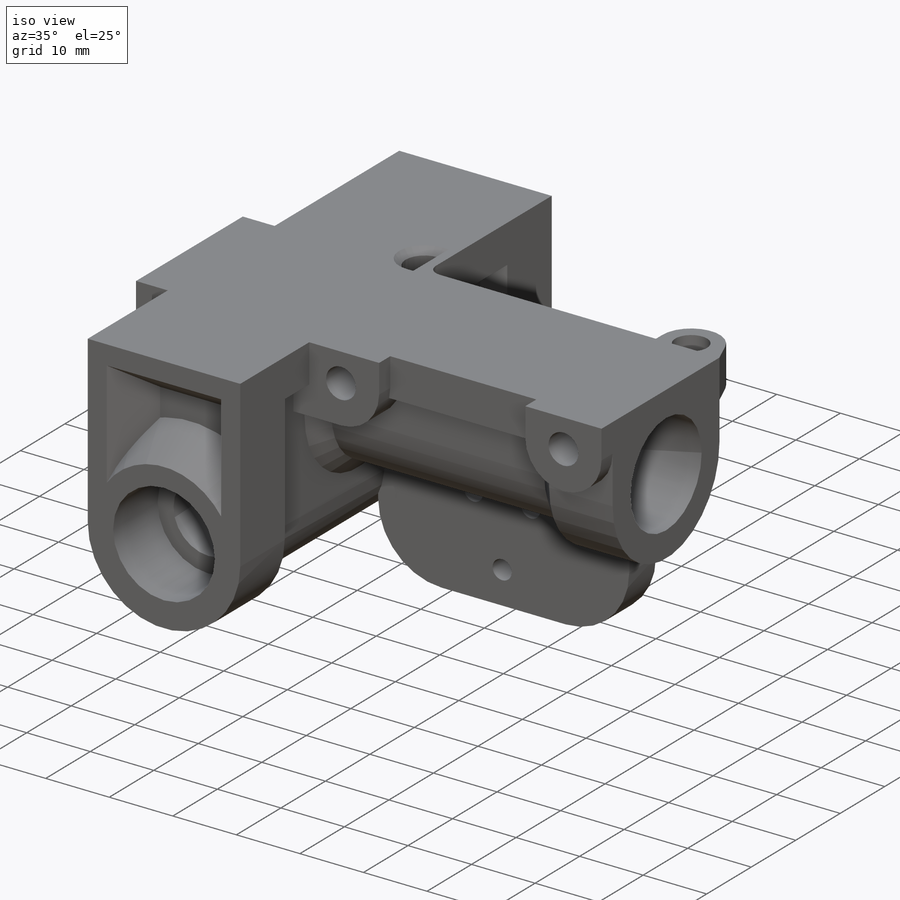
[diagram: iso view]
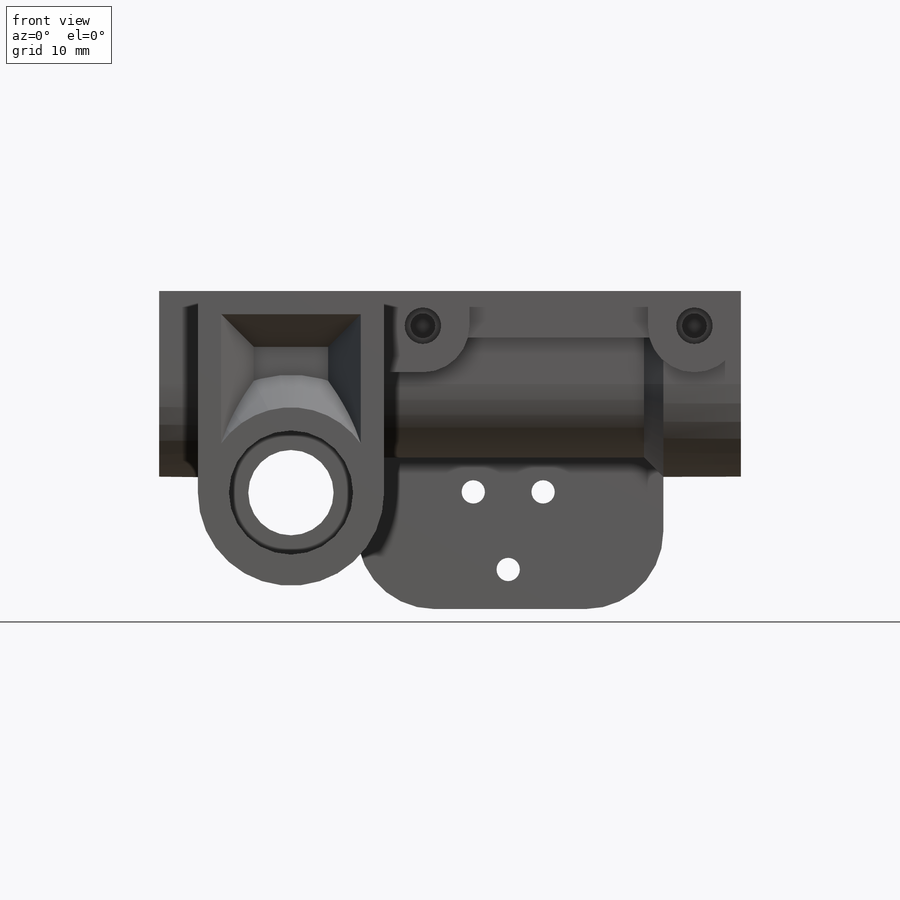
[diagram: front view]
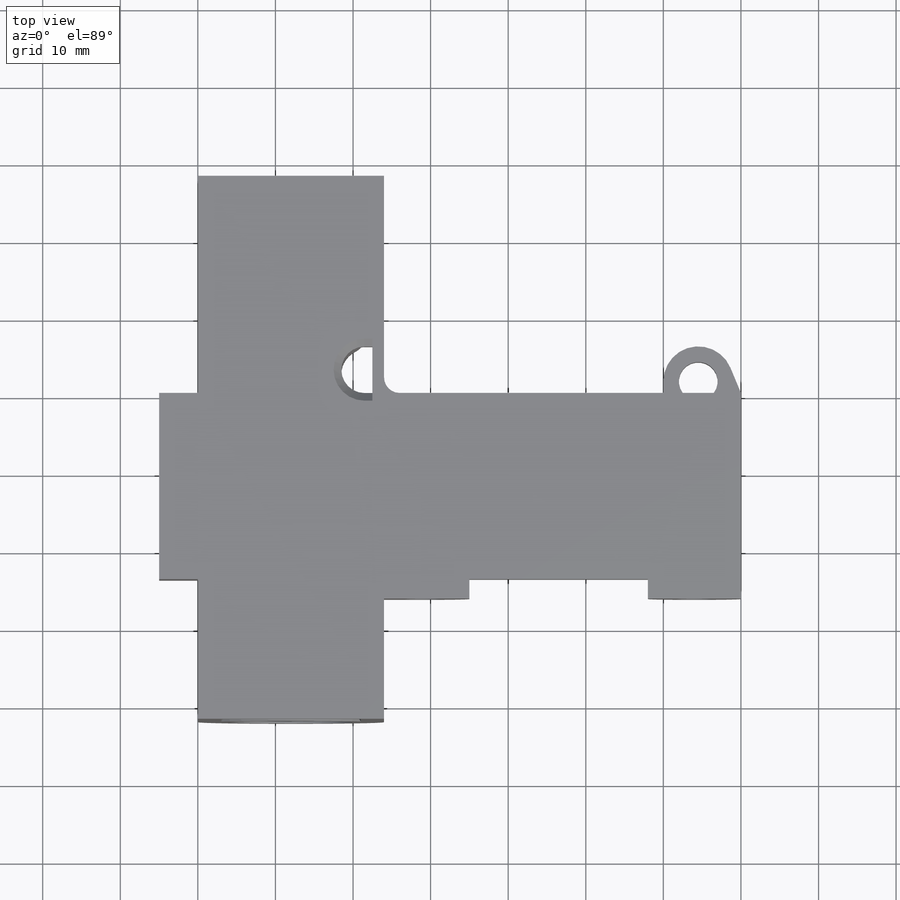
[diagram: top view]
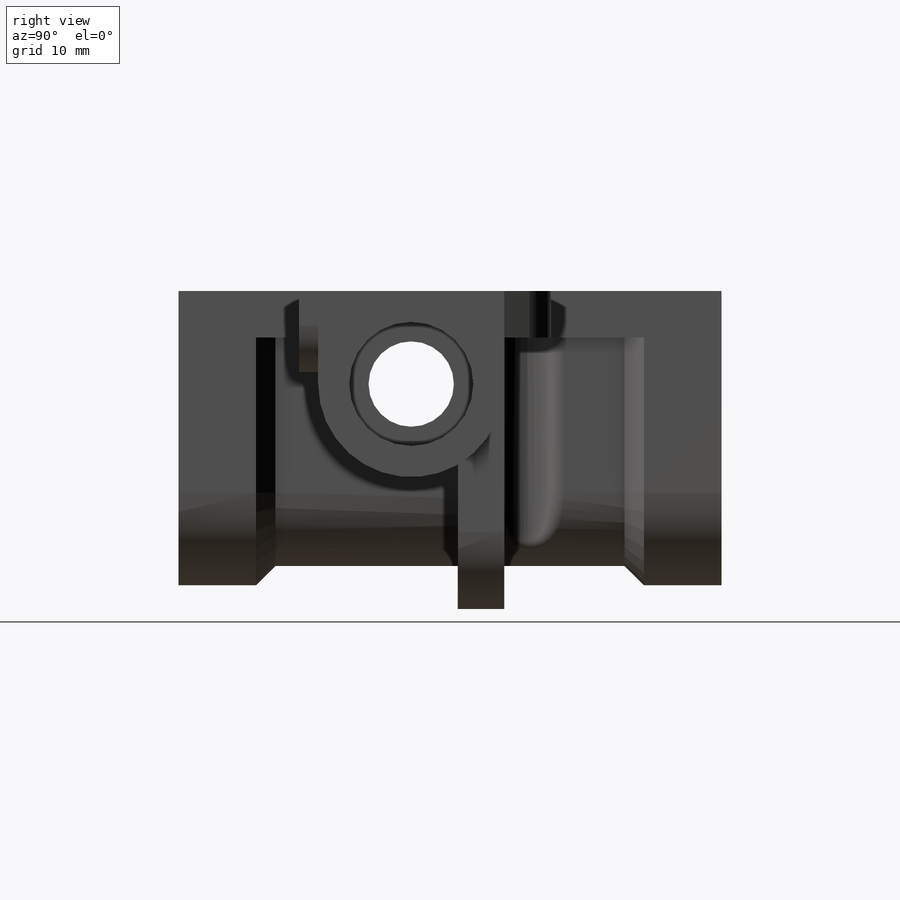
[diagram: right view]
SOLIDWORKS PART (.sldprt)
format: sldprt  version: not decoded by parser v0  size: 737,280 bytes
history: native  units: mm
features: sketch x21, extrude x11, cut_extrude x8, plane x5, chamfer x2, fillet x2, material x1 (+13 scaffold rows collapsed)
feature tree (63):
  scaffold x13  (default folders/planes/origin — collapsed)
  material  "Material <not specified>"
  sketch  "Sketch1"  dims[c1.D1=11.0mm c1.D2=16.0mm c1.D3=24.0mm c1.D5=24.0mm c2.D2=~7.407902mm c2.D4=40.0mm c2.D5=19.0mm]
  sketch  "Sketch2"  dims[c1.D1=11.0mm c1.D2=~17.401507mm c2.D1=11.0mm c2.D2=16.0mm c2.D3=24.0mm c2.D4=14.0mm c2.D5=12.0mm]
  plane  "Plane1"  Offset=28mm
  plane  "Plane2"  Offset=70mm
  plane  "Plane3"  Offset=45mm
  plane  "Plane4"  Offset=75mm
  sketch  "Sketch4"
  extrude  "Boss-Extrude2"  Depth=10mm
  extrude  "Boss-Extrude3"  [1 undecoded]
  sketch  "Sketch4<2>"  dims[D1=10.0mm]
  sketch  "Sketch5"  dims[D1=19.0mm]
  extrude  "Boss-Extrude4"  [1 undecoded]
  sketch  "Sketch6"
  extrude  "Boss-Extrude5"  Depth=10mm
  extrude  "Boss-Extrude6"  [1 undecoded]
  sketch  "Sketch6<2>"  dims[D1=10.0mm]
  sketch  "Sketch7"  dims[D1=19.0mm]
  extrude  "Boss-Extrude7"  [1 undecoded]
  sketch  "Sketch8"
  cut_extrude  "Cut-Extrude1"  [1 undecoded]
  sketch  "Sketch10"
  cut_extrude  "Cut-Extrude2"  [1 undecoded]
  chamfer  "Chamfer2"  Distance=2.5mm Angle=45deg
  sketch  "Sketch9"  dims[c1.D1=5.0mm c1.D2=9.0mm c1.D3=1.5mm c2.D1=0.0mm]
  extrude  "Boss-Extrude8"  Depth=6mm
  plane  "Plane5"  Offset=35mm
  sketch  "Sketch11"  dims[c1.D1=3.5mm c1.D2=1.0mm c1.D3=6.0mm c2.D1=1.0mm]
  extrude  "Boss-Extrude9"  [1 undecoded]
  sketch  "Sketch12"  dims[D1=3.0mm D2=3.0mm]
  cut_extrude  "Cut-Extrude3"  Depth=8mm
  cut_extrude  "Cut-Extrude4"  [1 undecoded]
  sketch  "Sketch12<2>"  dims[D1=6.0mm D3=35.0deg]
  sketch  "Sketch13"  dims[c1.D1=3.0mm c1.D2=3.0mm c1.D3=3.0mm c1.D4=3.0mm c1.D5=3.0mm c1.D6=3.0mm c1.D7=3.0mm c2.D4=9.0mm c2.D5=10.0mm c2.D6=4.5mm c3.D5=10.0mm c3.D6=4.5mm c3.D7=5.1mm]
  cut_extrude  "Cut-Extrude5"  [1 undecoded]
  fillet  "Fillet2"  Radius=10mm
  sketch  "Sketch14"  dims[D1=6.0mm D2=1.5mm]
  cut_extrude  "Cut-Extrude6"  Depth=2mm
  chamfer  "Chamfer5"  Distance=1mm Angle=45deg
  fillet  "Fillet3"  Radius=2mm
  sketch  "Sketch15"  dims[c1.D1=12.0mm c1.D2=12.0mm c1.D3=6.0mm c2.D2=6.0mm c2.D1=35.0mm c2.D3=5.0mm c2.D4=4.5mm]
  extrude  "Boss-Extrude10"  Depth=5mm
  sketch  "Sketch16"  dims[D1=4.7mm D2=4.7mm D3=3.2mm D4=3.2mm]
  cut_extrude  "Cut-Extrude7"  Depth=6mm
  cut_extrude  "Cut-Extrude9"  [1 undecoded]
  sketch  "Sketch16<3>"  dims[D1=9.0mm]
  sketch  "Sketch17"  dims[c1.D2=8.0mm c1.D1=8.0mm c1.D4=3.0mm c2.D1=~3.423117mm c3.D1=65.0deg c4.D1=8.0mm c4.D3=~10.129776mm c5.D3=68.0deg]
  extrude  "Boss-Extrude11"  Depth=4mm
  sketch  "Sketch18"  dims[D1=0.0mm]
  extrude  "Boss-Extrude12"  [1 undecoded]
decode coverage: 29 of 44 modeling features carry decoded parameters
note: ~ marks probable driven/reference dimensions
note: 11 parameter values undecoded
summary: no parameter record found for 11 features
note: suppression state not decoded; provenance and decode notes live in map.json
